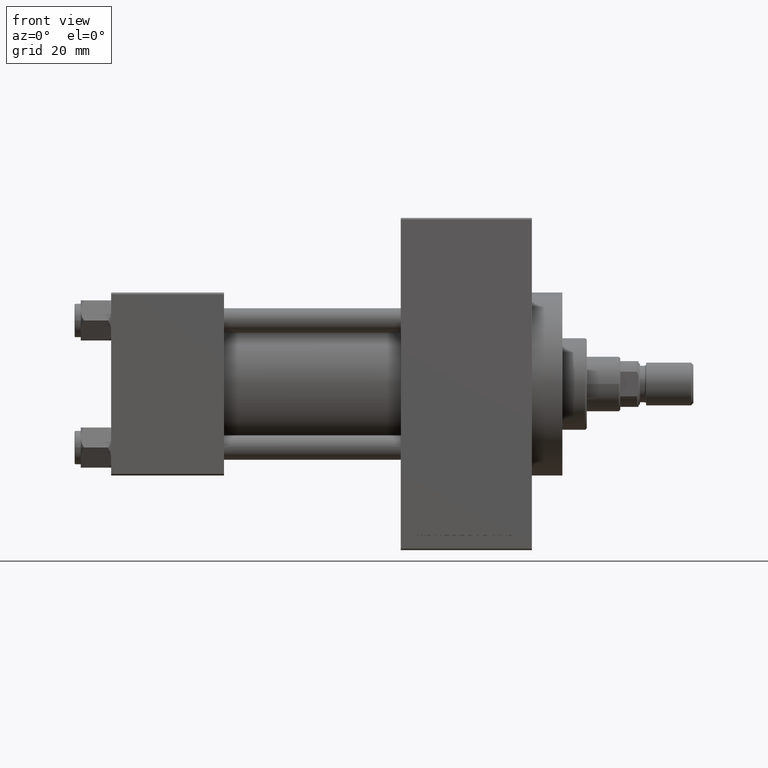
[diagram: clean part render]
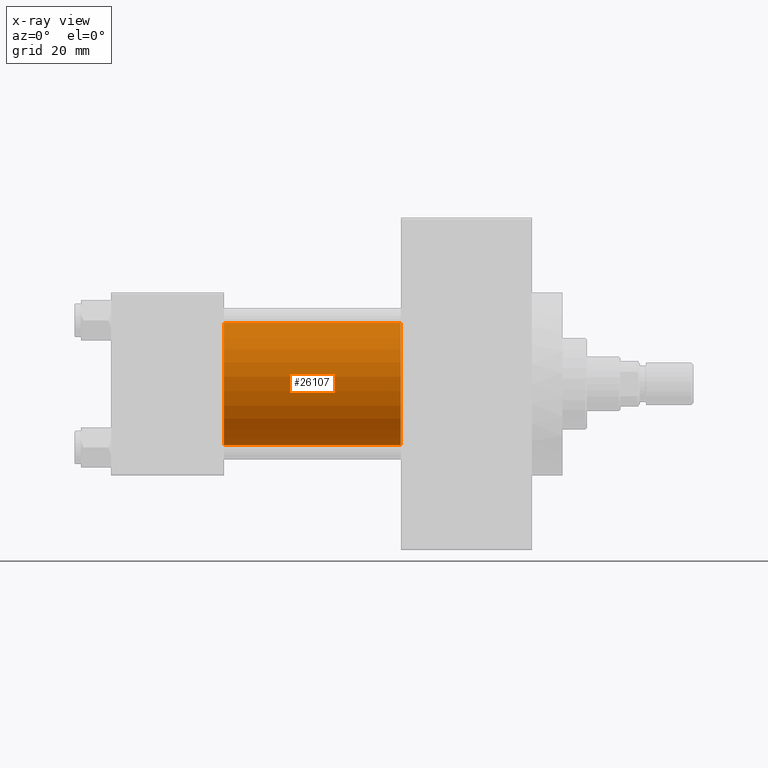
[diagram: x-ray — body ghosted, one internal face saturated and labeled with its STEP entity id]
A machine part, front view, then the same camera in x-ray: the body is ghosted and one INTERNAL B-rep face — a face not visible from any outside direction — is saturated and labeled: STEP entity #26107.
In plain terms, the highlighted cylindrical surface (partial cylindrical patch) has radius 20 mm, axis along (-1, -0, -0).
Its self-contained STEP definition (entity closure, byte-faithful):
#1692 = VECTOR ( 'NONE', #31437, 1000.000000000000000 ) ;
#2363 = AXIS2_PLACEMENT_3D ( 'NONE', #6594, #22895, #21901 ) ;
#2375 = EDGE_CURVE ( 'NONE', #11455, #7037, #26437, .T. ) ;
#4522 = LINE ( 'NONE', #43288, #1692 ) ;
#6308 = EDGE_LOOP ( 'NONE', ( #7055, #45587, #43273, #9288 ) ) ;
#6594 = CARTESIAN_POINT ( 'NONE',  ( 95.00000000000000000, -2.602085213965210642E-15, 0.000000000000000000 ) ) ;
#7037 = VERTEX_POINT ( 'NONE', #7686 ) ;
#7055 = ORIENTED_EDGE ( 'NONE', *, *, #2375, .T. ) ;
#7686 = CARTESIAN_POINT ( 'NONE',  ( 95.00000000000000000, -1.527916156705046464E-16, -20.00000000000000000 ) ) ;
#7896 = DIRECTION ( 'NONE',  ( -1.000000000000000000, -0.000000000000000000, -0.000000000000000000 ) ) ;
#8143 = FACE_OUTER_BOUND ( 'NONE', #6308, .T. ) ;
#9288 = ORIENTED_EDGE ( 'NONE', *, *, #11611, .F. ) ;
#11447 = DIRECTION ( 'NONE',  ( -1.000000000000000000, -0.000000000000000000, -0.000000000000000000 ) ) ;
#11455 = VERTEX_POINT ( 'NONE', #16103 ) ;
#11611 = EDGE_CURVE ( 'NONE', #11455, #32756, #19749, .T. ) ;
#11650 = AXIS2_PLACEMENT_3D ( 'NONE', #42868, #7896, #15419 ) ;
#12978 = EDGE_CURVE ( 'NONE', #7037, #40699, #4522, .T. ) ;
#15419 = DIRECTION ( 'NONE',  ( 0.000000000000000000, 0.000000000000000000, 1.000000000000000000 ) ) ;
#16029 = DIRECTION ( 'NONE',  ( 0.000000000000000000, 0.000000000000000000, -1.000000000000000000 ) ) ;
#16103 = CARTESIAN_POINT ( 'NONE',  ( 95.00000000000000000, -2.602085213965210642E-15, 20.00000000000000000 ) ) ;
#19749 = LINE ( 'NONE', #49716, #24936 ) ;
#21901 = DIRECTION ( 'NONE',  ( 0.000000000000000000, 0.000000000000000000, -1.000000000000000000 ) ) ;
#22895 = DIRECTION ( 'NONE',  ( 1.000000000000000000, 0.000000000000000000, 0.000000000000000000 ) ) ;
#24936 = VECTOR ( 'NONE', #11447, 1000.000000000000000 ) ;
#26107 = ADVANCED_FACE ( 'NONE', ( #8143 ), #39094, .F. ) ;
#26437 = CIRCLE ( 'NONE', #2363, 20.00000000000000000 ) ;
#27466 = EDGE_CURVE ( 'NONE', #32756, #40699, #28569, .T. ) ;
#27579 = CARTESIAN_POINT ( 'NONE',  ( 37.00000000000000000, -2.602085213965210642E-15, 0.000000000000000000 ) ) ;
#28569 = CIRCLE ( 'NONE', #31818, 20.00000000000000000 ) ;
#31437 = DIRECTION ( 'NONE',  ( -1.000000000000000000, -0.000000000000000000, -0.000000000000000000 ) ) ;
#31818 = AXIS2_PLACEMENT_3D ( 'NONE', #27579, #36158, #16029 ) ;
#32756 = VERTEX_POINT ( 'NONE', #42895 ) ;
#36158 = DIRECTION ( 'NONE',  ( 1.000000000000000000, 0.000000000000000000, 0.000000000000000000 ) ) ;
#39094 = CYLINDRICAL_SURFACE ( 'NONE', #11650, 20.00000000000000000 ) ;
#40699 = VERTEX_POINT ( 'NONE', #42680 ) ;
#42680 = CARTESIAN_POINT ( 'NONE',  ( 37.00000000000000000, -1.527916156705046464E-16, -20.00000000000000000 ) ) ;
#42868 = CARTESIAN_POINT ( 'NONE',  ( 95.00000000000000000, -2.602085213965210642E-15, 0.000000000000000000 ) ) ;
#42895 = CARTESIAN_POINT ( 'NONE',  ( 37.00000000000000000, -2.602085213965210642E-15, 20.00000000000000000 ) ) ;
#43273 = ORIENTED_EDGE ( 'NONE', *, *, #27466, .F. ) ;
#43288 = CARTESIAN_POINT ( 'NONE',  ( 95.00000000000000000, -1.527916156705046464E-16, -20.00000000000000000 ) ) ;
#45587 = ORIENTED_EDGE ( 'NONE', *, *, #12978, .T. ) ;
#49716 = CARTESIAN_POINT ( 'NONE',  ( 95.00000000000000000, -2.602085213965210642E-15, 20.00000000000000000 ) ) ;